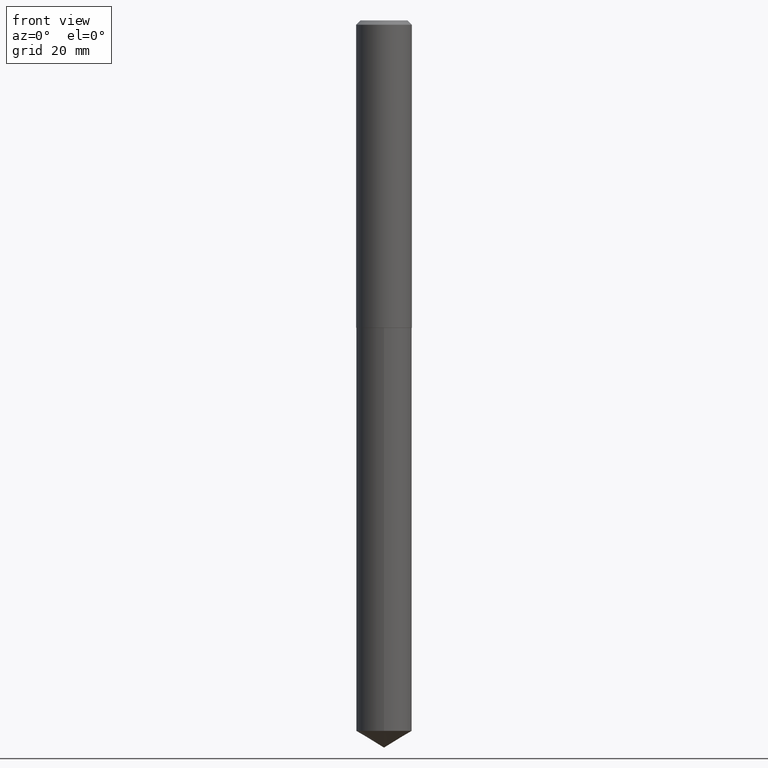
[diagram: clean part render]
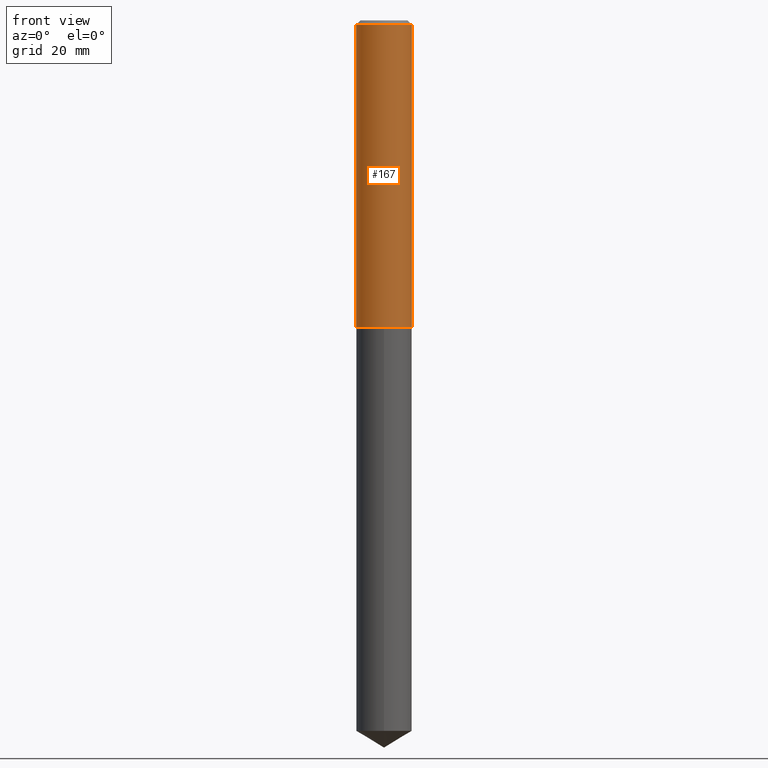
[diagram: same view with one face highlighted and labeled with its STEP entity id]
A machine part, front view. The second image highlights one B-rep face of the part: STEP entity #167.
In plain terms, the highlighted cylindrical surface (edge-blend (fillet) strip) has radius 5.1003 mm, axis along (-0, 0, 1).
Its self-contained STEP definition (entity closure, byte-faithful):
#18 = CARTESIAN_POINT ( 'NONE',  ( -0.2008000000000002838, -6.296736056248642724E-15, -2.212100000000000843 ) ) ;
#25 = DIRECTION ( 'NONE',  ( 1.000000000000000000, -6.982962677686266711E-15, 0.000000000000000000 ) ) ;
#37 = CARTESIAN_POINT ( 'NONE',  ( 0.2008000000000001450, -1.402178905679403337E-15, 9.791362965798246718E-30 ) ) ;
#42 = EDGE_CURVE ( 'NONE', #150, #188, #212, .T. ) ;
#72 = CARTESIAN_POINT ( 'NONE',  ( 5.409621546162143394E-29, -7.723505869654926111E-15, -2.212100000000000843 ) ) ;
#91 = CARTESIAN_POINT ( 'NONE',  ( 0.2008000000000000063, -1.511287697518251451E-15, -0.03125000000000022898 ) ) ;
#97 = FACE_OUTER_BOUND ( 'NONE', #174, .T. ) ;
#100 = DIRECTION ( 'NONE',  ( -2.445468806185136877E-29, 3.491481338843145188E-15, 1.000000000000000000 ) ) ;
#102 = CARTESIAN_POINT ( 'NONE',  ( -0.2008000000000001450, 1.426769813406282204E-15, -9.877221661231856994E-30 ) ) ;
#118 = CARTESIAN_POINT ( 'NONE',  ( 0.2008000000000002838, -9.125684775334329843E-15, -2.212100000000000843 ) ) ;
#124 = CYLINDRICAL_SURFACE ( 'NONE', #261, 0.2008000000000001450 ) ;
#128 = CIRCLE ( 'NONE', #246, 0.2008000000000000063 ) ;
#132 = VERTEX_POINT ( 'NONE', #118 ) ;
#137 = VECTOR ( 'NONE', #100, 39.37007874015748143 ) ;
#143 = CIRCLE ( 'NONE', #221, 0.2008000000000002838 ) ;
#150 = VERTEX_POINT ( 'NONE', #18 ) ;
#162 = VERTEX_POINT ( 'NONE', #91 ) ;
#167 = ADVANCED_FACE ( 'NONE', ( #97 ), #124, .T. ) ;
#174 = EDGE_LOOP ( 'NONE', ( #359, #227, #281, #341 ) ) ;
#182 = CARTESIAN_POINT ( 'NONE',  ( 0.000000000000000000, 0.000000000000000000, 0.000000000000000000 ) ) ;
#188 = VERTEX_POINT ( 'NONE', #294 ) ;
#189 = EDGE_CURVE ( 'NONE', #132, #162, #287, .T. ) ;
#194 = EDGE_CURVE ( 'NONE', #150, #132, #143, .T. ) ;
#207 = VECTOR ( 'NONE', #332, 39.37007874015748143 ) ;
#212 = LINE ( 'NONE', #102, #207 ) ;
#221 = AXIS2_PLACEMENT_3D ( 'NONE', #72, #302, #289 ) ;
#227 = ORIENTED_EDGE ( 'NONE', *, *, #194, .T. ) ;
#246 = AXIS2_PLACEMENT_3D ( 'NONE', #374, #291, #25 ) ;
#261 = AXIS2_PLACEMENT_3D ( 'NONE', #182, #356, #349 ) ;
#281 = ORIENTED_EDGE ( 'NONE', *, *, #189, .T. ) ;
#287 = LINE ( 'NONE', #37, #137 ) ;
#289 = DIRECTION ( 'NONE',  ( 1.000000000000000000, -6.982962677686267499E-15, 0.000000000000000000 ) ) ;
#291 = DIRECTION ( 'NONE',  ( -2.445468806185136597E-29, 3.491481338843145583E-15, 1.000000000000000000 ) ) ;
#294 = CARTESIAN_POINT ( 'NONE',  ( -0.2008000000000000063, -2.489537517340604613E-15, -0.03125000000000022898 ) ) ;
#302 = DIRECTION ( 'NONE',  ( -2.445468806185136597E-29, 3.491481338843145583E-15, 1.000000000000000000 ) ) ;
#332 = DIRECTION ( 'NONE',  ( -2.445468806185136877E-29, 3.491481338843145188E-15, 1.000000000000000000 ) ) ;
#341 = ORIENTED_EDGE ( 'NONE', *, *, #381, .F. ) ;
#349 = DIRECTION ( 'NONE',  ( 1.000000000000000000, -6.982962677686266711E-15, 4.876176775795936353E-29 ) ) ;
#356 = DIRECTION ( 'NONE',  ( -2.445468806185136597E-29, 3.491481338843145583E-15, 1.000000000000000000 ) ) ;
#359 = ORIENTED_EDGE ( 'NONE', *, *, #42, .F. ) ;
#374 = CARTESIAN_POINT ( 'NONE',  ( 7.642090019328607041E-31, -1.091087918388490883E-16, -0.03125000000000022898 ) ) ;
#381 = EDGE_CURVE ( 'NONE', #188, #162, #128, .T. ) ;